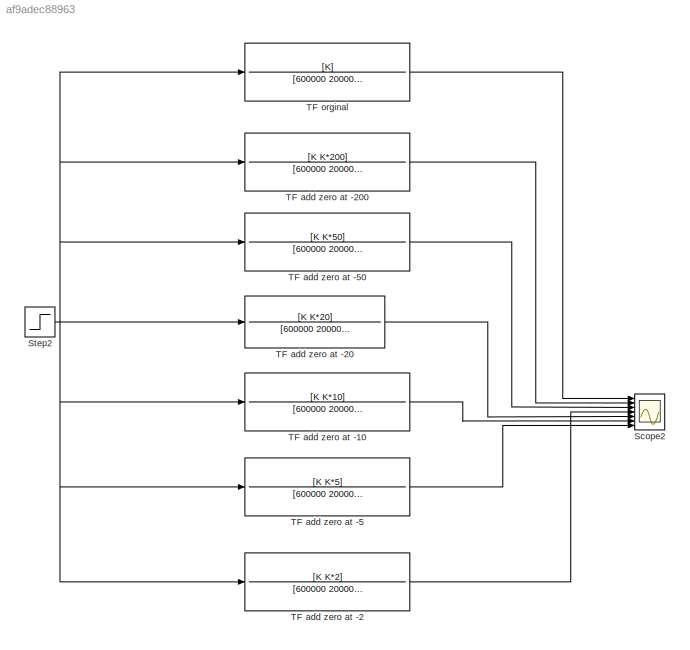
MODEL slx_af9adec88963
KIND model
CONFIG AbsTol = auto
CONFIG EnableMultiTasking = off
CONFIG FixedStep = auto
CONFIG MaxStep = auto
CONFIG MinStep = auto
CONFIG RelTol = 1e-3
CONFIG SampleTimeConstraint = Unconstrained
CONFIG Solver = VariableStepAuto
CONFIG SolverName = VariableStepAuto
CONFIG StartTime = 0.0
CONFIG StopTime = 10.0
BLOCK [Scope] Scope2
  Floating = off
  NumInputPorts = 7
  Ports = [7]
  ScopeSpecificationString = Simulink.scopes.TimeScopeBlockCfg('CurrentConfiguration', extmgr.ConfigurationSet(extmgr.Configuration('Core','General UI',true),extmgr.Configuration('Core','Source UI',true),extmgr.Configuration('Sources','WiredSimulink',true,'DataLoggingVariableName','ScopeData2'),extmgr.Configuration('Visuals','Time Domain',true,'SerializedDisplays',{struct('MinYLimReal','-0.51619','MaxYLimReal','4.64575','YLab...<+1460ch>
BLOCK [Step] Step2
  SampleTime = 0
  Time = 0
BLOCK [TransferFcn] TF add zero at -10
  Denominator = [600000 20000 K]
  Numerator = [K K*10]
BLOCK [TransferFcn] TF add zero at -2
  Denominator = [600000 20000 K]
  Numerator = [K K*2]
BLOCK [TransferFcn] TF add zero at -20
  Denominator = [600000 20000 K]
  Numerator = [K K*20]
BLOCK [TransferFcn] TF add zero at -200
  Denominator = [600000 20000 K]
  Numerator = [K K*200]
BLOCK [TransferFcn] TF add zero at -5
  Denominator = [600000 20000 K]
  Numerator = [K K*5]
BLOCK [TransferFcn] TF add zero at -50
  Denominator = [600000 20000 K]
  Numerator = [K K*50]
BLOCK [TransferFcn] TF orginal 
  Denominator = [600000 20000 K]
  Numerator = [K]
NET Step2:1 -> TF add zero at -10:1, TF add zero at -200:1, TF add zero at -20:1, TF add zero at -2:1, TF add zero at -50:1, TF add zero at -5:1, TF orginal :1
LINE TF add zero at -10:1 -> Scope2:6
LINE TF add zero at -200:1 -> Scope2:2
LINE TF add zero at -20:1 -> Scope2:5
LINE TF add zero at -2:1 -> Scope2:4
LINE TF add zero at -50:1 -> Scope2:3
LINE TF add zero at -5:1 -> Scope2:7
LINE TF orginal :1 -> Scope2:1
note: NET lines group one-source signal fan-out (src -> all destinations, sorted); 1:1 wires keep LINE
